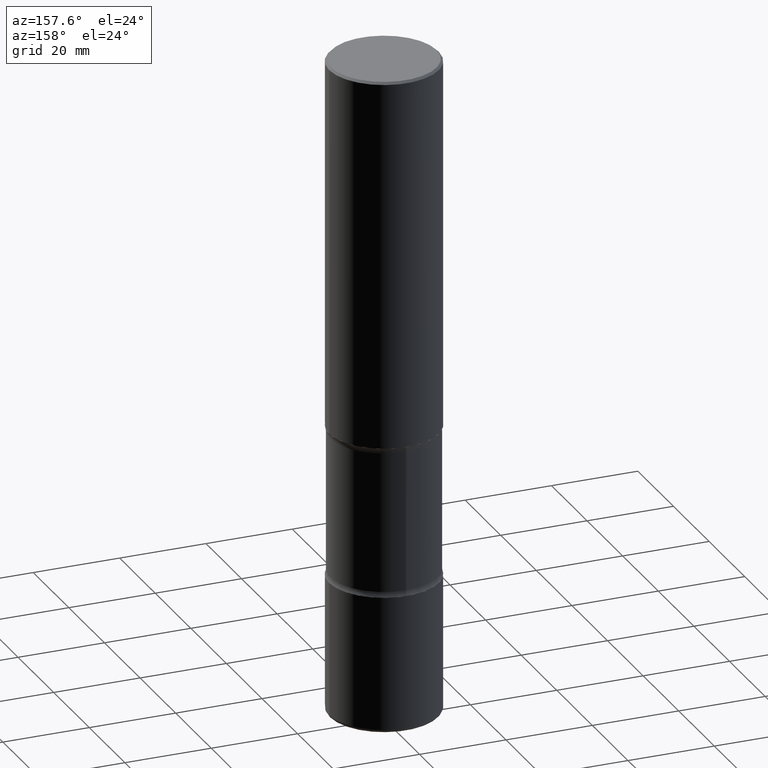
[diagram: clean part render]
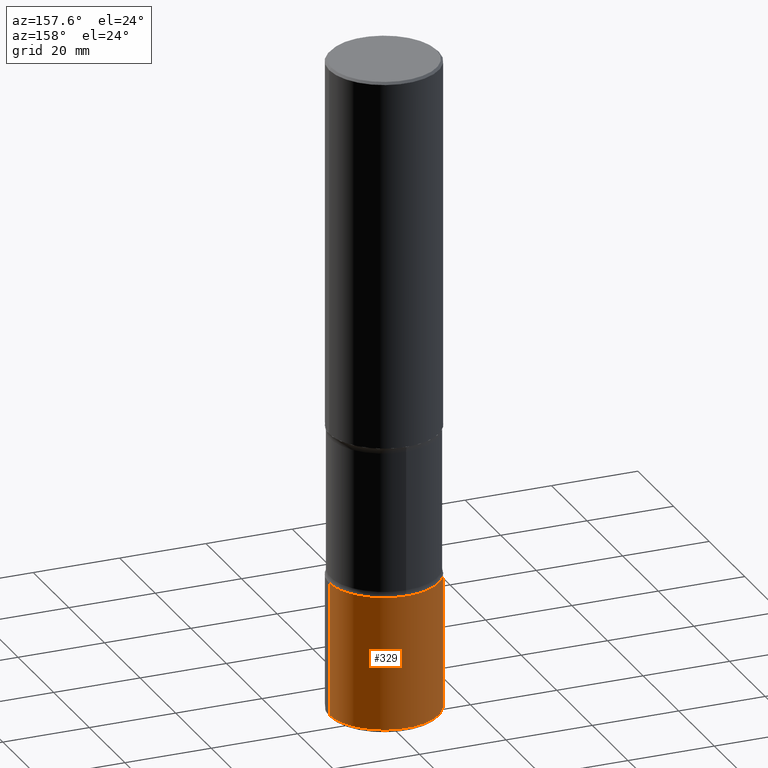
[diagram: same view with one face highlighted and labeled with its STEP entity id]
A machine part, auxiliary view. The second image highlights one B-rep face of the part: STEP entity #329.
In plain terms, the highlighted cylindrical surface (partial cylindrical patch) has radius 12.7 mm, axis along (-0, 0, 1).
Its self-contained STEP definition (entity closure, byte-faithful):
#13 = DIRECTION ( 'NONE',  ( -2.445468806185136877E-29, 3.491481338843145188E-15, 1.000000000000000000 ) ) ;
#24 = DIRECTION ( 'NONE',  ( -2.445468806185136877E-29, 3.491481338843145188E-15, 1.000000000000000000 ) ) ;
#40 = CIRCLE ( 'NONE', #361, 0.5000000000000006661 ) ;
#62 = EDGE_CURVE ( 'NONE', #296, #343, #106, .T. ) ;
#67 = CARTESIAN_POINT ( 'NONE',  ( -0.5000000000000006661, 3.552713678800505663E-15, -2.459467545127455974E-29 ) ) ;
#68 = FACE_OUTER_BOUND ( 'NONE', #152, .T. ) ;
#87 = DIRECTION ( 'NONE',  ( -2.445468806185136597E-29, 3.491481338843145583E-15, 1.000000000000000000 ) ) ;
#106 = CIRCLE ( 'NONE', #114, 0.5000000000000006661 ) ;
#109 = ORIENTED_EDGE ( 'NONE', *, *, #255, .F. ) ;
#113 = CARTESIAN_POINT ( 'NONE',  ( 0.5000000000000007772, -2.433562493173672216E-14, -5.969999999999999751 ) ) ;
#114 = AXIS2_PLACEMENT_3D ( 'NONE', #336, #87, #443 ) ;
#124 = ORIENTED_EDGE ( 'NONE', *, *, #366, .T. ) ;
#133 = DIRECTION ( 'NONE',  ( 1.000000000000000000, -6.982962677686265133E-15, 0.000000000000000000 ) ) ;
#151 = CARTESIAN_POINT ( 'NONE',  ( 0.000000000000000000, 0.000000000000000000, 0.000000000000000000 ) ) ;
#152 = EDGE_LOOP ( 'NONE', ( #192, #124, #276, #109 ) ) ;
#192 = ORIENTED_EDGE ( 'NONE', *, *, #62, .T. ) ;
#222 = VERTEX_POINT ( 'NONE', #450 ) ;
#232 = DIRECTION ( 'NONE',  ( -2.445468806185136597E-29, 3.491481338843145583E-15, 1.000000000000000000 ) ) ;
#240 = CARTESIAN_POINT ( 'NONE',  ( 0.5000000000000006661, -3.491481338843138088E-15, 2.438088387897971260E-29 ) ) ;
#242 = VERTEX_POINT ( 'NONE', #422 ) ;
#255 = EDGE_CURVE ( 'NONE', #296, #242, #551, .T. ) ;
#260 = LINE ( 'NONE', #67, #469 ) ;
#276 = ORIENTED_EDGE ( 'NONE', *, *, #461, .F. ) ;
#296 = VERTEX_POINT ( 'NONE', #113 ) ;
#305 = CARTESIAN_POINT ( 'NONE',  ( 1.161597682937940108E-28, -1.658453635950494339E-14, -4.750000000000000000 ) ) ;
#329 = ADVANCED_FACE ( 'NONE', ( #68 ), #547, .T. ) ;
#336 = CARTESIAN_POINT ( 'NONE',  ( 1.459944877292526494E-28, -2.084414359289357934E-14, -5.969999999999999751 ) ) ;
#343 = VERTEX_POINT ( 'NONE', #462 ) ;
#361 = AXIS2_PLACEMENT_3D ( 'NONE', #305, #498, #133 ) ;
#366 = EDGE_CURVE ( 'NONE', #343, #222, #260, .T. ) ;
#373 = DIRECTION ( 'NONE',  ( 1.000000000000000000, -6.982962677686266711E-15, 4.876176775795935793E-29 ) ) ;
#376 = AXIS2_PLACEMENT_3D ( 'NONE', #151, #232, #373 ) ;
#399 = VECTOR ( 'NONE', #24, 39.37007874015748143 ) ;
#422 = CARTESIAN_POINT ( 'NONE',  ( 0.5000000000000006661, -2.007601769834807990E-14, -4.750000000000000000 ) ) ;
#443 = DIRECTION ( 'NONE',  ( 1.000000000000000000, -6.982962677686269077E-15, 0.000000000000000000 ) ) ;
#450 = CARTESIAN_POINT ( 'NONE',  ( -0.5000000000000006661, -1.516162629739875255E-14, -4.750000000000000000 ) ) ;
#461 = EDGE_CURVE ( 'NONE', #242, #222, #40, .T. ) ;
#462 = CARTESIAN_POINT ( 'NONE',  ( -0.5000000000000007772, -1.729142991409307210E-14, -5.969999999999999751 ) ) ;
#469 = VECTOR ( 'NONE', #13, 39.37007874015748143 ) ;
#498 = DIRECTION ( 'NONE',  ( -2.445468806185136597E-29, 3.491481338843145583E-15, 1.000000000000000000 ) ) ;
#547 = CYLINDRICAL_SURFACE ( 'NONE', #376, 0.5000000000000006661 ) ;
#551 = LINE ( 'NONE', #240, #399 ) ;